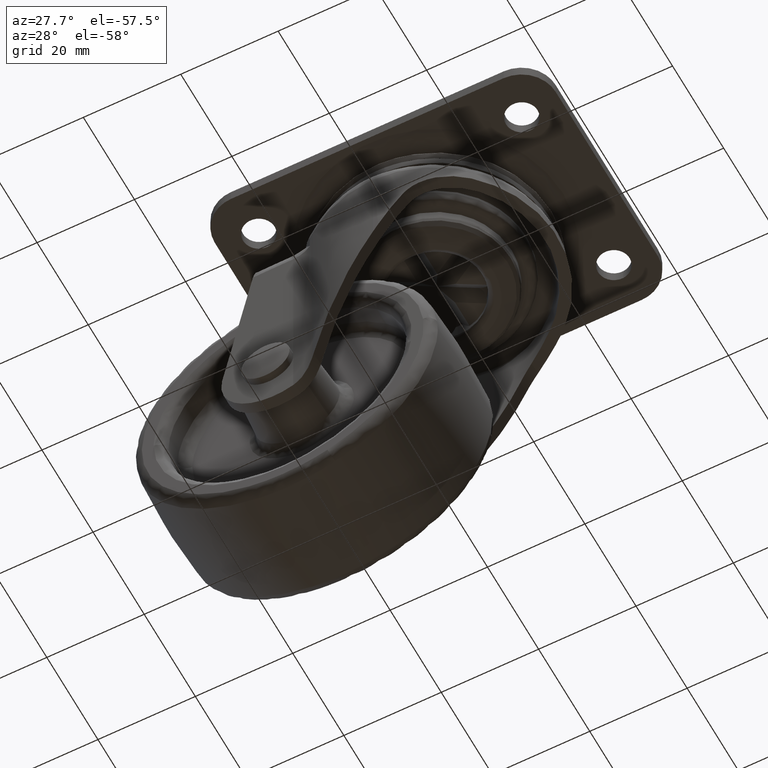
[diagram: clean part render]
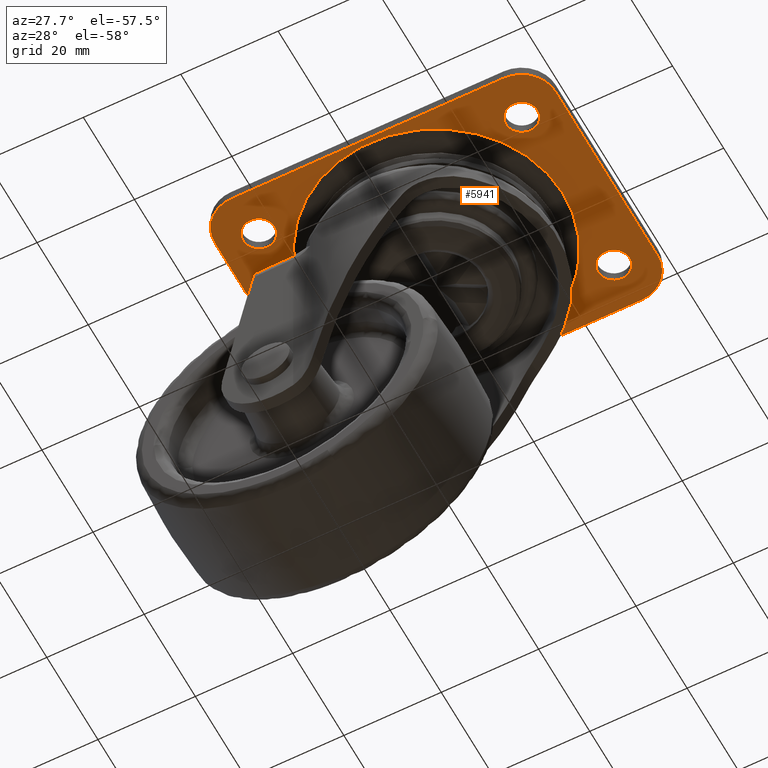
[diagram: same view with one face highlighted and labeled with its STEP entity id]
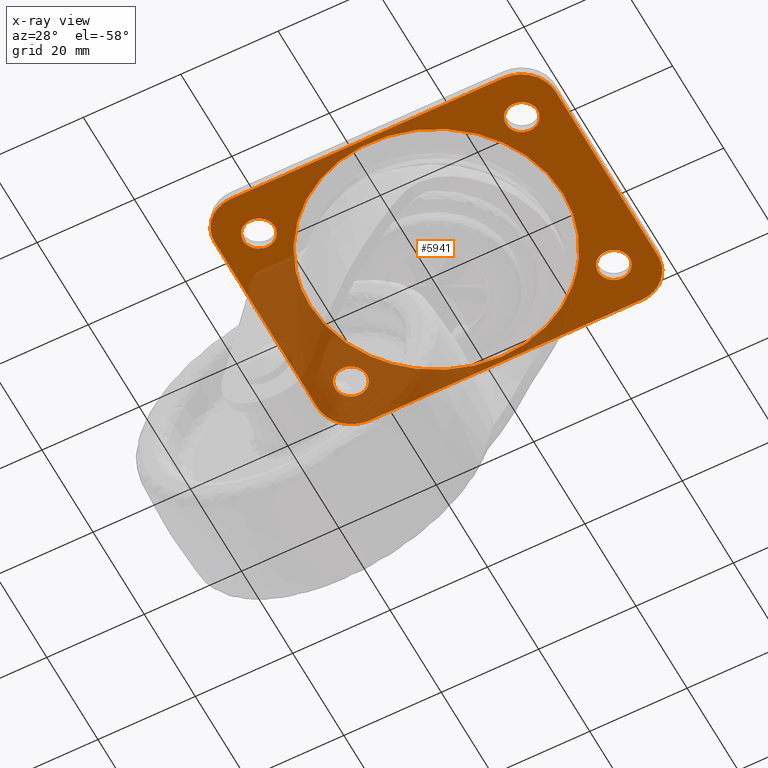
[diagram: x-ray of the same camera — body ghosted, the highlighted face saturated]
A machine part, auxiliary view. The second image highlights one B-rep face of the part: STEP entity #5941.
The next image is the same camera in x-ray: the body ghosted, the highlighted face saturated — about 33% of this face is hidden behind the body in this view.
In plain terms, the highlighted face is a freeform B-spline surface patch.
Its self-contained STEP definition (entity closure, byte-faithful):
#4156=CARTESIAN_POINT('',(-26.801592246482791,21.243938094869289,-2.300282999999959));
#4157=VERTEX_POINT('',#4156);
#4163=CARTESIAN_POINT('',(-23.750000000000000,18.0,-2.300282999999960));
#4164=VERTEX_POINT('',#4163);
#4165=CARTESIAN_POINT('',(-23.750000000000000,18.0,-2.300282999999960));
#4166=CARTESIAN_POINT('',(-23.749999999999989,21.057294717388903,-2.300282999999960));
#4167=CARTESIAN_POINT('',(-26.801592246482787,21.243938094869296,-2.300282999999959));
#4175=(BOUNDED_CURVE()B_SPLINE_CURVE(2,(#4165,#4166,#4167),.UNSPECIFIED.,.F.,.U.)B_SPLINE_CURVE_WITH_KNOTS((3,3),(0.500000000000000,0.739332962238892),.UNSPECIFIED.)CURVE()GEOMETRIC_REPRESENTATION_ITEM()RATIONAL_B_SPLINE_CURVE((1.0,0.719603993286770,0.976072041666608))REPRESENTATION_ITEM(''));
#4176=EDGE_CURVE('',#4164,#4157,#4175,.T.);
#4178=CARTESIAN_POINT('',(-27.383611262670041,14.772719039322320,-2.300282999999960));
#4179=VERTEX_POINT('',#4178);
#4180=CARTESIAN_POINT('',(-27.383611262670041,14.772719039322313,-2.300282999999960));
#4181=CARTESIAN_POINT('',(-27.192478388904657,14.750000000000000,-2.300282999999959));
#4182=CARTESIAN_POINT('',(-27.0,14.750000000000000,-2.300282999999960));
#4183=CARTESIAN_POINT('',(-23.749999999999996,14.749999999999993,-2.300282999999960));
#4184=CARTESIAN_POINT('',(-23.750000000000000,18.0,-2.300282999999960));
#4192=(BOUNDED_CURVE()B_SPLINE_CURVE(2,(#4180,#4181,#4182,#4183,#4184),.UNSPECIFIED.,.F.,.U.)B_SPLINE_CURVE_WITH_KNOTS((3,2,3),(0.229562473511919,0.250000000000000,0.500000000000000),.UNSPECIFIED.)CURVE()GEOMETRIC_REPRESENTATION_ITEM()RATIONAL_B_SPLINE_CURVE((0.956026754180584,0.976055948329283,1.0,0.707106781186547,1.0))REPRESENTATION_ITEM(''));
#4193=EDGE_CURVE('',#4179,#4164,#4192,.T.);
#4237=CARTESIAN_POINT('',(-30.250000000000000,18.0,-2.300282999999960));
#4238=VERTEX_POINT('',#4237);
#4239=CARTESIAN_POINT('',(-30.250000000000000,18.0,-2.300282999999960));
#4240=CARTESIAN_POINT('',(-30.250000000000004,15.113432790722133,-2.300282999999960));
#4241=CARTESIAN_POINT('',(-27.383611262670033,14.772719039322322,-2.300282999999961));
#4249=(BOUNDED_CURVE()B_SPLINE_CURVE(2,(#4239,#4240,#4241),.UNSPECIFIED.,.F.,.U.)B_SPLINE_CURVE_WITH_KNOTS((3,3),(0.0,0.229562473511919),.UNSPECIFIED.)CURVE()GEOMETRIC_REPRESENTATION_ITEM()RATIONAL_B_SPLINE_CURVE((1.0,0.731050832857265,0.956026754180584))REPRESENTATION_ITEM(''));
#4250=EDGE_CURVE('',#4238,#4179,#4249,.T.);
#4252=CARTESIAN_POINT('',(-26.801592246482794,21.243938094869296,-2.300282999999959));
#4253=CARTESIAN_POINT('',(-26.900703519250584,21.250000000000004,-2.300282999999960));
#4254=CARTESIAN_POINT('',(-27.0,21.250000000000000,-2.300282999999960));
#4255=CARTESIAN_POINT('',(-30.250000000000000,21.249999999999996,-2.300282999999960));
#4256=CARTESIAN_POINT('',(-30.250000000000000,18.0,-2.300282999999960));
#4264=(BOUNDED_CURVE()B_SPLINE_CURVE(2,(#4252,#4253,#4254,#4255,#4256),.UNSPECIFIED.,.F.,.U.)B_SPLINE_CURVE_WITH_KNOTS((3,2,3),(0.739332962238892,0.750000000000000,1.0),.UNSPECIFIED.)CURVE()GEOMETRIC_REPRESENTATION_ITEM()RATIONAL_B_SPLINE_CURVE((0.976072041666608,0.987502787899777,1.0,0.707106781186547,1.0))REPRESENTATION_ITEM(''));
#4265=EDGE_CURVE('',#4157,#4238,#4264,.T.);
#4342=CARTESIAN_POINT('',(-26.801592246482791,-14.756061905130700,-2.300282999999960));
#4343=VERTEX_POINT('',#4342);
#4349=CARTESIAN_POINT('',(-23.750000000000000,-18.0,-2.300282999999960));
#4350=VERTEX_POINT('',#4349);
#4351=CARTESIAN_POINT('',(-23.750000000000000,-18.0,-2.300282999999960));
#4352=CARTESIAN_POINT('',(-23.749999999999989,-14.942705282611101,-2.300282999999960));
#4353=CARTESIAN_POINT('',(-26.801592246482798,-14.756061905130707,-2.300282999999960));
#4361=(BOUNDED_CURVE()B_SPLINE_CURVE(2,(#4351,#4352,#4353),.UNSPECIFIED.,.F.,.U.)B_SPLINE_CURVE_WITH_KNOTS((3,3),(0.500000000000000,0.739332962238892),.UNSPECIFIED.)CURVE()GEOMETRIC_REPRESENTATION_ITEM()RATIONAL_B_SPLINE_CURVE((1.0,0.719603993286770,0.976072041666608))REPRESENTATION_ITEM(''));
#4362=EDGE_CURVE('',#4350,#4343,#4361,.T.);
#4364=CARTESIAN_POINT('',(-27.383611262670030,-21.227280960677689,-2.300282999999960));
#4365=VERTEX_POINT('',#4364);
#4366=CARTESIAN_POINT('',(-27.383611262670037,-21.227280960677689,-2.300282999999961));
#4367=CARTESIAN_POINT('',(-27.192478388904647,-21.249999999999993,-2.300282999999960));
#4368=CARTESIAN_POINT('',(-27.0,-21.250000000000000,-2.300282999999960));
#4369=CARTESIAN_POINT('',(-23.749999999999996,-21.249999999999996,-2.300282999999960));
#4370=CARTESIAN_POINT('',(-23.750000000000000,-18.0,-2.300282999999960));
#4378=(BOUNDED_CURVE()B_SPLINE_CURVE(2,(#4366,#4367,#4368,#4369,#4370),.UNSPECIFIED.,.F.,.U.)B_SPLINE_CURVE_WITH_KNOTS((3,2,3),(0.229562473511919,0.250000000000000,0.500000000000000),.UNSPECIFIED.)CURVE()GEOMETRIC_REPRESENTATION_ITEM()RATIONAL_B_SPLINE_CURVE((0.956026754180584,0.976055948329283,1.0,0.707106781186547,1.0))REPRESENTATION_ITEM(''));
#4379=EDGE_CURVE('',#4365,#4350,#4378,.T.);
#4423=CARTESIAN_POINT('',(-30.250000000000000,-18.0,-2.300282999999960));
#4424=VERTEX_POINT('',#4423);
#4425=CARTESIAN_POINT('',(-30.250000000000000,-18.0,-2.300282999999960));
#4426=CARTESIAN_POINT('',(-30.250000000000000,-20.886567209277860,-2.300282999999959));
#4427=CARTESIAN_POINT('',(-27.383611262670037,-21.227280960677689,-2.300282999999961));
#4435=(BOUNDED_CURVE()B_SPLINE_CURVE(2,(#4425,#4426,#4427),.UNSPECIFIED.,.F.,.U.)B_SPLINE_CURVE_WITH_KNOTS((3,3),(0.0,0.229562473511919),.UNSPECIFIED.)CURVE()GEOMETRIC_REPRESENTATION_ITEM()RATIONAL_B_SPLINE_CURVE((1.0,0.731050832857264,0.956026754180584))REPRESENTATION_ITEM(''));
#4436=EDGE_CURVE('',#4424,#4365,#4435,.T.);
#4438=CARTESIAN_POINT('',(-26.801592246482791,-14.756061905130705,-2.300282999999960));
#4439=CARTESIAN_POINT('',(-26.900703519250584,-14.749999999999998,-2.300282999999960));
#4440=CARTESIAN_POINT('',(-27.0,-14.750000000000000,-2.300282999999960));
#4441=CARTESIAN_POINT('',(-30.250000000000000,-14.749999999999993,-2.300282999999960));
#4442=CARTESIAN_POINT('',(-30.250000000000000,-18.0,-2.300282999999960));
#4450=(BOUNDED_CURVE()B_SPLINE_CURVE(2,(#4438,#4439,#4440,#4441,#4442),.UNSPECIFIED.,.F.,.U.)B_SPLINE_CURVE_WITH_KNOTS((3,2,3),(0.739332962238892,0.750000000000000,1.0),.UNSPECIFIED.)CURVE()GEOMETRIC_REPRESENTATION_ITEM()RATIONAL_B_SPLINE_CURVE((0.976072041666608,0.987502787899778,1.0,0.707106781186547,1.0))REPRESENTATION_ITEM(''));
#4451=EDGE_CURVE('',#4343,#4424,#4450,.T.);
#4528=CARTESIAN_POINT('',(27.198407753517198,21.243938094869300,-2.300282999999959));
#4529=VERTEX_POINT('',#4528);
#4535=CARTESIAN_POINT('',(30.250000000000000,18.0,-2.300282999999960));
#4536=VERTEX_POINT('',#4535);
#4537=CARTESIAN_POINT('',(30.250000000000000,18.0,-2.300282999999960));
#4538=CARTESIAN_POINT('',(30.250000000000014,21.057294717388903,-2.300282999999960));
#4539=CARTESIAN_POINT('',(27.198407753517198,21.243938094869296,-2.300282999999959));
#4547=(BOUNDED_CURVE()B_SPLINE_CURVE(2,(#4537,#4538,#4539),.UNSPECIFIED.,.F.,.U.)B_SPLINE_CURVE_WITH_KNOTS((3,3),(0.500000000000000,0.739332962238892),.UNSPECIFIED.)CURVE()GEOMETRIC_REPRESENTATION_ITEM()RATIONAL_B_SPLINE_CURVE((1.0,0.719603993286770,0.976072041666608))REPRESENTATION_ITEM(''));
#4548=EDGE_CURVE('',#4536,#4529,#4547,.T.);
#4550=CARTESIAN_POINT('',(26.616388737329959,14.772719039322320,-2.300282999999960));
#4551=VERTEX_POINT('',#4550);
#4552=CARTESIAN_POINT('',(26.616388737329967,14.772719039322311,-2.300282999999961));
#4553=CARTESIAN_POINT('',(26.807521611095343,14.749999999999998,-2.300282999999959));
#4554=CARTESIAN_POINT('',(27.0,14.750000000000000,-2.300282999999960));
#4555=CARTESIAN_POINT('',(30.250000000000000,14.749999999999993,-2.300282999999960));
#4556=CARTESIAN_POINT('',(30.250000000000000,18.0,-2.300282999999960));
#4564=(BOUNDED_CURVE()B_SPLINE_CURVE(2,(#4552,#4553,#4554,#4555,#4556),.UNSPECIFIED.,.F.,.U.)B_SPLINE_CURVE_WITH_KNOTS((3,2,3),(0.229562473511919,0.250000000000000,0.500000000000000),.UNSPECIFIED.)CURVE()GEOMETRIC_REPRESENTATION_ITEM()RATIONAL_B_SPLINE_CURVE((0.956026754180584,0.976055948329283,1.0,0.707106781186547,1.0))REPRESENTATION_ITEM(''));
#4565=EDGE_CURVE('',#4551,#4536,#4564,.T.);
#4609=CARTESIAN_POINT('',(23.750000000000000,18.0,-2.300282999999960));
#4610=VERTEX_POINT('',#4609);
#4611=CARTESIAN_POINT('',(23.750000000000000,18.0,-2.300282999999960));
#4612=CARTESIAN_POINT('',(23.749999999999989,15.113432790722133,-2.300282999999960));
#4613=CARTESIAN_POINT('',(26.616388737329963,14.772719039322322,-2.300282999999961));
#4621=(BOUNDED_CURVE()B_SPLINE_CURVE(2,(#4611,#4612,#4613),.UNSPECIFIED.,.F.,.U.)B_SPLINE_CURVE_WITH_KNOTS((3,3),(0.0,0.229562473511919),.UNSPECIFIED.)CURVE()GEOMETRIC_REPRESENTATION_ITEM()RATIONAL_B_SPLINE_CURVE((1.0,0.731050832857265,0.956026754180584))REPRESENTATION_ITEM(''));
#4622=EDGE_CURVE('',#4610,#4551,#4621,.T.);
#4624=CARTESIAN_POINT('',(27.198407753517202,21.243938094869293,-2.300282999999960));
#4625=CARTESIAN_POINT('',(27.099296480749409,21.250000000000000,-2.300282999999960));
#4626=CARTESIAN_POINT('',(27.0,21.250000000000000,-2.300282999999960));
#4627=CARTESIAN_POINT('',(23.749999999999996,21.249999999999996,-2.300282999999960));
#4628=CARTESIAN_POINT('',(23.750000000000000,18.0,-2.300282999999960));
#4636=(BOUNDED_CURVE()B_SPLINE_CURVE(2,(#4624,#4625,#4626,#4627,#4628),.UNSPECIFIED.,.F.,.U.)B_SPLINE_CURVE_WITH_KNOTS((3,2,3),(0.739332962238892,0.750000000000000,1.0),.UNSPECIFIED.)CURVE()GEOMETRIC_REPRESENTATION_ITEM()RATIONAL_B_SPLINE_CURVE((0.976072041666609,0.987502787899778,1.0,0.707106781186547,1.0))REPRESENTATION_ITEM(''));
#4637=EDGE_CURVE('',#4529,#4610,#4636,.T.);
#4714=CARTESIAN_POINT('',(27.198407753517198,-14.756061905130700,-2.300282999999959));
#4715=VERTEX_POINT('',#4714);
#4721=CARTESIAN_POINT('',(30.250000000000000,-18.0,-2.300282999999960));
#4722=VERTEX_POINT('',#4721);
#4723=CARTESIAN_POINT('',(30.250000000000000,-18.0,-2.300282999999960));
#4724=CARTESIAN_POINT('',(30.250000000000014,-14.942705282611101,-2.300282999999960));
#4725=CARTESIAN_POINT('',(27.198407753517198,-14.756061905130707,-2.300282999999959));
#4733=(BOUNDED_CURVE()B_SPLINE_CURVE(2,(#4723,#4724,#4725),.UNSPECIFIED.,.F.,.U.)B_SPLINE_CURVE_WITH_KNOTS((3,3),(0.500000000000000,0.739332962238892),.UNSPECIFIED.)CURVE()GEOMETRIC_REPRESENTATION_ITEM()RATIONAL_B_SPLINE_CURVE((1.0,0.719603993286770,0.976072041666608))REPRESENTATION_ITEM(''));
#4734=EDGE_CURVE('',#4722,#4715,#4733,.T.);
#4736=CARTESIAN_POINT('',(26.616388737329959,-21.227280960677689,-2.300282999999960));
#4737=VERTEX_POINT('',#4736);
#4738=CARTESIAN_POINT('',(26.616388737329963,-21.227280960677682,-2.300282999999961));
#4739=CARTESIAN_POINT('',(26.807521611095339,-21.249999999999996,-2.300282999999960));
#4740=CARTESIAN_POINT('',(27.0,-21.250000000000000,-2.300282999999960));
#4741=CARTESIAN_POINT('',(30.250000000000000,-21.249999999999996,-2.300282999999960));
#4742=CARTESIAN_POINT('',(30.250000000000000,-18.0,-2.300282999999960));
#4750=(BOUNDED_CURVE()B_SPLINE_CURVE(2,(#4738,#4739,#4740,#4741,#4742),.UNSPECIFIED.,.F.,.U.)B_SPLINE_CURVE_WITH_KNOTS((3,2,3),(0.229562473511919,0.250000000000000,0.500000000000000),.UNSPECIFIED.)CURVE()GEOMETRIC_REPRESENTATION_ITEM()RATIONAL_B_SPLINE_CURVE((0.956026754180584,0.976055948329283,1.0,0.707106781186547,1.0))REPRESENTATION_ITEM(''));
#4751=EDGE_CURVE('',#4737,#4722,#4750,.T.);
#4795=CARTESIAN_POINT('',(23.750000000000000,-18.0,-2.300282999999960));
#4796=VERTEX_POINT('',#4795);
#4797=CARTESIAN_POINT('',(23.750000000000000,-18.0,-2.300282999999960));
#4798=CARTESIAN_POINT('',(23.749999999999993,-20.886567209277857,-2.300282999999960));
#4799=CARTESIAN_POINT('',(26.616388737329959,-21.227280960677682,-2.300282999999960));
#4807=(BOUNDED_CURVE()B_SPLINE_CURVE(2,(#4797,#4798,#4799),.UNSPECIFIED.,.F.,.U.)B_SPLINE_CURVE_WITH_KNOTS((3,3),(0.0,0.229562473511919),.UNSPECIFIED.)CURVE()GEOMETRIC_REPRESENTATION_ITEM()RATIONAL_B_SPLINE_CURVE((1.0,0.731050832857265,0.956026754180584))REPRESENTATION_ITEM(''));
#4808=EDGE_CURVE('',#4796,#4737,#4807,.T.);
#4810=CARTESIAN_POINT('',(27.198407753517202,-14.756061905130707,-2.300282999999960));
#4811=CARTESIAN_POINT('',(27.099296480749409,-14.749999999999996,-2.300282999999960));
#4812=CARTESIAN_POINT('',(27.0,-14.750000000000000,-2.300282999999960));
#4813=CARTESIAN_POINT('',(23.749999999999996,-14.749999999999993,-2.300282999999960));
#4814=CARTESIAN_POINT('',(23.750000000000000,-18.0,-2.300282999999960));
#4822=(BOUNDED_CURVE()B_SPLINE_CURVE(2,(#4810,#4811,#4812,#4813,#4814),.UNSPECIFIED.,.F.,.U.)B_SPLINE_CURVE_WITH_KNOTS((3,2,3),(0.739332962238892,0.750000000000000,1.0),.UNSPECIFIED.)CURVE()GEOMETRIC_REPRESENTATION_ITEM()RATIONAL_B_SPLINE_CURVE((0.976072041666609,0.987502787899778,1.0,0.707106781186547,1.0))REPRESENTATION_ITEM(''));
#4823=EDGE_CURVE('',#4715,#4796,#4822,.T.);
#5468=CARTESIAN_POINT('',(21.874048457088360,14.054393793137200,-2.300283000076276));
#5469=VERTEX_POINT('',#5468);
#5483=CARTESIAN_POINT('',(25.999999630790299,0.0,-2.300283000000000));
#5484=VERTEX_POINT('',#5483);
#5485=CARTESIAN_POINT('',(21.874048457088367,14.054393793137198,-2.300283000076277));
#5486=CARTESIAN_POINT('',(25.999999630790303,7.632825048829605,-2.300283000000000));
#5487=CARTESIAN_POINT('',(25.999999630790299,0.0,-2.300283000000000));
#5495=(BOUNDED_CURVE()B_SPLINE_CURVE(2,(#5485,#5486,#5487),.UNSPECIFIED.,.F.,.U.)B_SPLINE_CURVE_WITH_KNOTS((3,3),(0.407460173955937,0.500000000000000),.UNSPECIFIED.)CURVE()GEOMETRIC_REPRESENTATION_ITEM()RATIONAL_B_SPLINE_CURVE((0.863428933516416,0.891582849926070,1.0))REPRESENTATION_ITEM(''));
#5496=EDGE_CURVE('',#5469,#5484,#5495,.T.);
#5498=CARTESIAN_POINT('',(-25.999999630790299,0.0,-2.300283000000000));
#5499=VERTEX_POINT('',#5498);
#5500=CARTESIAN_POINT('',(25.999999630790299,0.0,-2.300283000000000));
#5501=CARTESIAN_POINT('',(25.999999630790292,-25.999999630790292,-2.300282999999999));
#5502=CARTESIAN_POINT('',(0.0,-25.999999630790299,-2.300283000000000));
#5503=CARTESIAN_POINT('',(-25.999999630790292,-25.999999630790292,-2.300282999999999));
#5504=CARTESIAN_POINT('',(-25.999999630790299,0.0,-2.300283000000000));
#5512=(BOUNDED_CURVE()B_SPLINE_CURVE(2,(#5500,#5501,#5502,#5503,#5504),.UNSPECIFIED.,.F.,.U.)B_SPLINE_CURVE_WITH_KNOTS((3,2,3),(0.500000000000000,0.750000000000000,1.0),.UNSPECIFIED.)CURVE()GEOMETRIC_REPRESENTATION_ITEM()RATIONAL_B_SPLINE_CURVE((1.0,0.707106781186548,1.0,0.707106781186548,1.0))REPRESENTATION_ITEM(''));
#5513=EDGE_CURVE('',#5484,#5499,#5512,.T.);
#5515=CARTESIAN_POINT('',(-15.282416365212930,21.034441570095520,-2.300282981540380));
#5516=VERTEX_POINT('',#5515);
#5517=CARTESIAN_POINT('',(-25.999999630790299,0.0,-2.300283000000000));
#5518=CARTESIAN_POINT('',(-25.999999630790303,13.247661486815943,-2.300283000000000));
#5519=CARTESIAN_POINT('',(-15.282416365212931,21.034441570095513,-2.300282981540380));
#5527=(BOUNDED_CURVE()B_SPLINE_CURVE(2,(#5517,#5518,#5519),.UNSPECIFIED.,.F.,.U.)B_SPLINE_CURVE_WITH_KNOTS((3,3),(0.0,0.148750340889244),.UNSPECIFIED.)CURVE()GEOMETRIC_REPRESENTATION_ITEM()RATIONAL_B_SPLINE_CURVE((1.0,0.825728135429404,0.858840264957051))REPRESENTATION_ITEM(''));
#5528=EDGE_CURVE('',#5499,#5516,#5527,.T.);
#5617=CARTESIAN_POINT('',(-15.282416365212931,21.034441570095513,-2.300282981540380));
#5618=CARTESIAN_POINT('',(-8.447911992552099,25.999999630790299,-2.300283000000000));
#5619=CARTESIAN_POINT('',(0.0,25.999999630790299,-2.300283000000000));
#5620=CARTESIAN_POINT('',(14.198823229944555,25.999999630790295,-2.300283000000001));
#5621=CARTESIAN_POINT('',(21.874048457088360,14.054393793137205,-2.300283000076276));
#5629=(BOUNDED_CURVE()B_SPLINE_CURVE(2,(#5617,#5618,#5619,#5620,#5621),.UNSPECIFIED.,.F.,.U.)B_SPLINE_CURVE_WITH_KNOTS((3,2,3),(0.148750340889244,0.250000000000000,0.407460173955937),.UNSPECIFIED.)CURVE()GEOMETRIC_REPRESENTATION_ITEM()RATIONAL_B_SPLINE_CURVE((0.858840264957051,0.881378645757143,1.0,0.815523931260477,0.863428933516416))REPRESENTATION_ITEM(''));
#5630=EDGE_CURVE('',#5516,#5469,#5629,.T.);
#5816=CARTESIAN_POINT('',(-38.496499864326417,29.697299895337519,-2.300283000000000));
#5817=CARTESIAN_POINT('',(38.496501741872727,29.697299895337519,-2.300283000000000));
#5818=CARTESIAN_POINT('',(-38.496499864326417,-29.697301343730391,-2.300283000000000));
#5819=CARTESIAN_POINT('',(38.496501741872727,-29.697301343730391,-2.300283000000000));
#5820=B_SPLINE_SURFACE_WITH_KNOTS('',1,1,((#5816,#5818),(#5817,#5819)),.UNSPECIFIED.,.F.,.F.,.U.,(2,2),(2,2),(0.0,76.993001606199158),(0.0,59.394601239067910),.UNSPECIFIED.);
#5821=CARTESIAN_POINT('',(28.0,27.0,-2.300282999999960));
#5822=VERTEX_POINT('',#5821);
#5823=CARTESIAN_POINT('',(-28.0,27.0,-2.300282999999960));
#5824=VERTEX_POINT('',#5823);
#5825=CARTESIAN_POINT('',(28.0,27.0,-2.300282999999960));
#5826=CARTESIAN_POINT('',(-28.0,27.0,-2.300282999999960));
#5827=QUASI_UNIFORM_CURVE('',1,(#5825,#5826),.UNSPECIFIED.,.F.,.U.);
#5828=EDGE_CURVE('',#5822,#5824,#5827,.T.);
#5829=ORIENTED_EDGE('',*,*,#5828,.F.);
#5830=CARTESIAN_POINT('',(35.0,20.0,-2.300282999999960));
#5831=VERTEX_POINT('',#5830);
#5832=CARTESIAN_POINT('',(35.0,20.0,-2.300282999999960));
#5833=CARTESIAN_POINT('',(35.0,27.0,-2.300282999999960));
#5834=CARTESIAN_POINT('',(28.0,27.0,-2.300282999999960));
#5842=(BOUNDED_CURVE()B_SPLINE_CURVE(2,(#5832,#5833,#5834),.UNSPECIFIED.,.F.,.U.)CURVE()GEOMETRIC_REPRESENTATION_ITEM()QUASI_UNIFORM_CURVE()RATIONAL_B_SPLINE_CURVE((1.0,0.707106781186547,1.0))REPRESENTATION_ITEM(''));
#5843=EDGE_CURVE('',#5831,#5822,#5842,.T.);
#5844=ORIENTED_EDGE('',*,*,#5843,.F.);
#5845=CARTESIAN_POINT('',(35.0,-20.0,-2.300282999999960));
#5846=VERTEX_POINT('',#5845);
#5847=CARTESIAN_POINT('',(35.0,-20.0,-2.300282999999960));
#5848=CARTESIAN_POINT('',(35.0,20.0,-2.300282999999960));
#5849=QUASI_UNIFORM_CURVE('',1,(#5847,#5848),.UNSPECIFIED.,.F.,.U.);
#5850=EDGE_CURVE('',#5846,#5831,#5849,.T.);
#5851=ORIENTED_EDGE('',*,*,#5850,.F.);
#5852=CARTESIAN_POINT('',(28.0,-27.0,-2.300282999999960));
#5853=VERTEX_POINT('',#5852);
#5854=CARTESIAN_POINT('',(28.0,-27.0,-2.300282999999960));
#5855=CARTESIAN_POINT('',(35.0,-27.0,-2.300282999999960));
#5856=CARTESIAN_POINT('',(35.0,-20.0,-2.300282999999960));
#5864=(BOUNDED_CURVE()B_SPLINE_CURVE(2,(#5854,#5855,#5856),.UNSPECIFIED.,.F.,.U.)CURVE()GEOMETRIC_REPRESENTATION_ITEM()QUASI_UNIFORM_CURVE()RATIONAL_B_SPLINE_CURVE((1.0,0.707106781186547,1.0))REPRESENTATION_ITEM(''));
#5865=EDGE_CURVE('',#5853,#5846,#5864,.T.);
#5866=ORIENTED_EDGE('',*,*,#5865,.F.);
#5867=CARTESIAN_POINT('',(-28.0,-27.0,-2.300282999999960));
#5868=VERTEX_POINT('',#5867);
#5869=CARTESIAN_POINT('',(-28.0,-27.0,-2.300282999999960));
#5870=CARTESIAN_POINT('',(28.0,-27.0,-2.300282999999960));
#5871=QUASI_UNIFORM_CURVE('',1,(#5869,#5870),.UNSPECIFIED.,.F.,.U.);
#5872=EDGE_CURVE('',#5868,#5853,#5871,.T.);
#5873=ORIENTED_EDGE('',*,*,#5872,.F.);
#5874=CARTESIAN_POINT('',(-35.0,-20.0,-2.300282999999960));
#5875=VERTEX_POINT('',#5874);
#5876=CARTESIAN_POINT('',(-35.0,-20.0,-2.300282999999960));
#5877=CARTESIAN_POINT('',(-35.0,-27.0,-2.300282999999960));
#5878=CARTESIAN_POINT('',(-28.0,-27.0,-2.300282999999960));
#5886=(BOUNDED_CURVE()B_SPLINE_CURVE(2,(#5876,#5877,#5878),.UNSPECIFIED.,.F.,.U.)CURVE()GEOMETRIC_REPRESENTATION_ITEM()QUASI_UNIFORM_CURVE()RATIONAL_B_SPLINE_CURVE((1.0,0.707106781186547,1.0))REPRESENTATION_ITEM(''));
#5887=EDGE_CURVE('',#5875,#5868,#5886,.T.);
#5888=ORIENTED_EDGE('',*,*,#5887,.F.);
#5889=CARTESIAN_POINT('',(-35.0,20.0,-2.300282999999960));
#5890=VERTEX_POINT('',#5889);
#5891=CARTESIAN_POINT('',(-35.0,20.0,-2.300282999999960));
#5892=CARTESIAN_POINT('',(-35.0,-20.0,-2.300282999999960));
#5893=QUASI_UNIFORM_CURVE('',1,(#5891,#5892),.UNSPECIFIED.,.F.,.U.);
#5894=EDGE_CURVE('',#5890,#5875,#5893,.T.);
#5895=ORIENTED_EDGE('',*,*,#5894,.F.);
#5896=CARTESIAN_POINT('',(-28.0,27.0,-2.300282999999960));
#5897=CARTESIAN_POINT('',(-35.0,27.0,-2.300282999999960));
#5898=CARTESIAN_POINT('',(-35.0,20.0,-2.300282999999960));
#5906=(BOUNDED_CURVE()B_SPLINE_CURVE(2,(#5896,#5897,#5898),.UNSPECIFIED.,.F.,.U.)CURVE()GEOMETRIC_REPRESENTATION_ITEM()QUASI_UNIFORM_CURVE()RATIONAL_B_SPLINE_CURVE((1.0,0.707106781186547,1.0))REPRESENTATION_ITEM(''));
#5907=EDGE_CURVE('',#5824,#5890,#5906,.T.);
#5908=ORIENTED_EDGE('',*,*,#5907,.F.);
#5909=EDGE_LOOP('',(#5829,#5844,#5851,#5866,#5873,#5888,#5895,#5908));
#5910=FACE_OUTER_BOUND('',#5909,.T.);
#5911=ORIENTED_EDGE('',*,*,#5513,.F.);
#5912=ORIENTED_EDGE('',*,*,#5496,.F.);
#5913=ORIENTED_EDGE('',*,*,#5630,.F.);
#5914=ORIENTED_EDGE('',*,*,#5528,.F.);
#5915=EDGE_LOOP('',(#5911,#5912,#5913,#5914));
#5916=FACE_BOUND('',#5915,.T.);
#5917=ORIENTED_EDGE('',*,*,#4734,.T.);
#5918=ORIENTED_EDGE('',*,*,#4823,.T.);
#5919=ORIENTED_EDGE('',*,*,#4808,.T.);
#5920=ORIENTED_EDGE('',*,*,#4751,.T.);
#5921=EDGE_LOOP('',(#5917,#5918,#5919,#5920));
#5922=FACE_BOUND('',#5921,.T.);
#5923=ORIENTED_EDGE('',*,*,#4548,.T.);
#5924=ORIENTED_EDGE('',*,*,#4637,.T.);
#5925=ORIENTED_EDGE('',*,*,#4622,.T.);
#5926=ORIENTED_EDGE('',*,*,#4565,.T.);
#5927=EDGE_LOOP('',(#5923,#5924,#5925,#5926));
#5928=FACE_BOUND('',#5927,.T.);
#5929=ORIENTED_EDGE('',*,*,#4362,.T.);
#5930=ORIENTED_EDGE('',*,*,#4451,.T.);
#5931=ORIENTED_EDGE('',*,*,#4436,.T.);
#5932=ORIENTED_EDGE('',*,*,#4379,.T.);
#5933=EDGE_LOOP('',(#5929,#5930,#5931,#5932));
#5934=FACE_BOUND('',#5933,.T.);
#5935=ORIENTED_EDGE('',*,*,#4176,.T.);
#5936=ORIENTED_EDGE('',*,*,#4265,.T.);
#5937=ORIENTED_EDGE('',*,*,#4250,.T.);
#5938=ORIENTED_EDGE('',*,*,#4193,.T.);
#5939=EDGE_LOOP('',(#5935,#5936,#5937,#5938));
#5940=FACE_BOUND('',#5939,.T.);
#5941=ADVANCED_FACE('',(#5910,#5916,#5922,#5928,#5934,#5940),#5820,.T.);